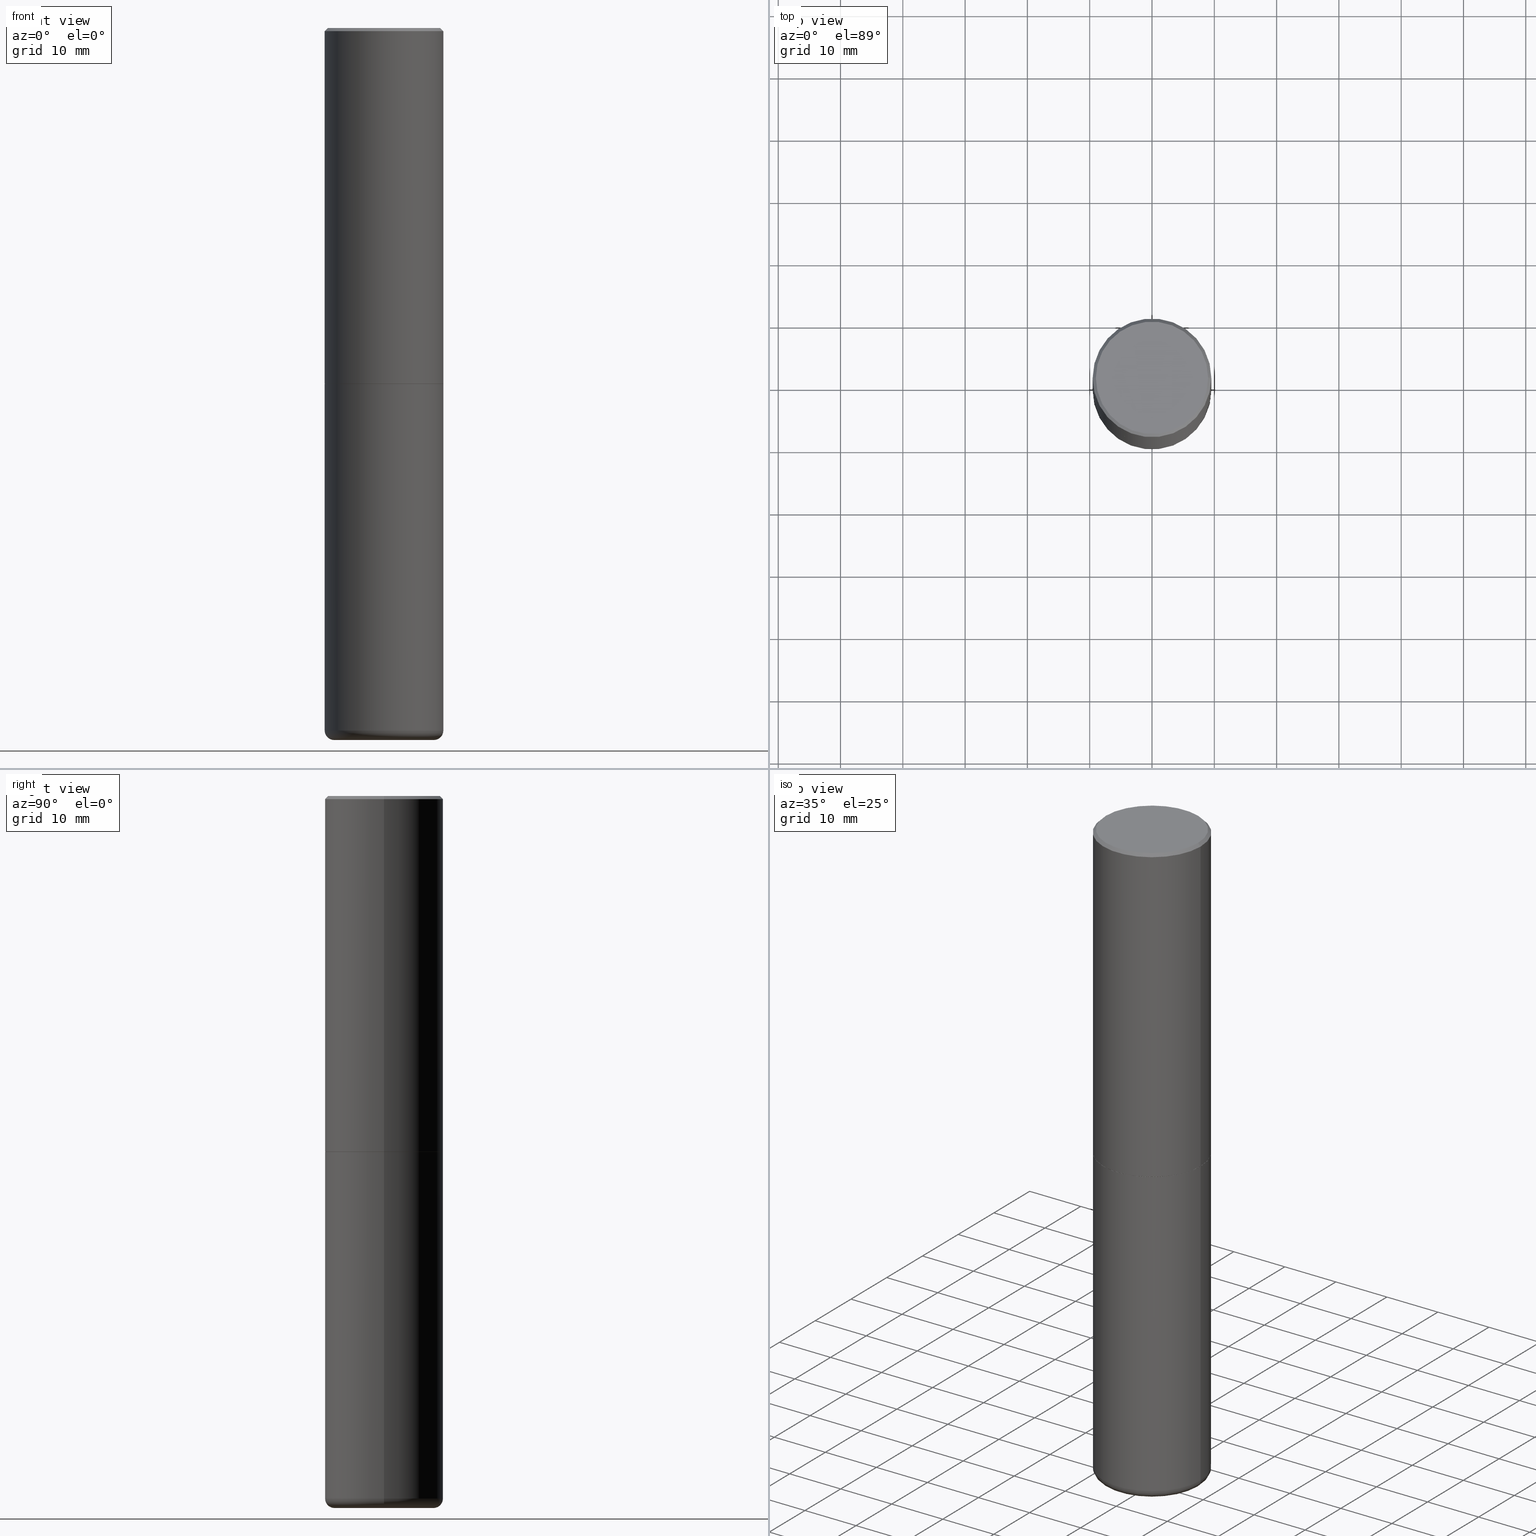
[diagram: canonical four-view strip — front | top / right | iso, engineering-drawing reading convention]
A machine part, canonical four-view strip (front | top / right | iso — engineering-drawing reading convention). The complete STEP part file that produces these views, byte-faithful:
ISO-10303-21;
HEADER;
FILE_DESCRIPTION (( 'STEP AP203' ),
    '1' );
FILE_NAME ('77270.STEP',
    '2024-03-06T16:45:54',
    ( '' ),
    ( '' ),
    'SwSTEP 2.0',
    'SolidWorks 2023',
    '' );
FILE_SCHEMA (( 'CONFIG_CONTROL_DESIGN' ));
ENDSEC;

DATA;
#1 = CARTESIAN_POINT ( 'NONE',  ( 5.502304813916558464E-29, -7.855833012397078448E-15, -2.250000000000000444 ) ) ;
#2 = VERTEX_POINT ( 'NONE', #268 ) ;
#3 = CC_DESIGN_APPROVAL ( #54, ( #314 ) ) ;
#4 = CARTESIAN_POINT ( 'NONE',  ( 4.890937612370294178E-31, -6.982962677686321191E-17, -0.02000000000000008715 ) ) ;
#5 = EDGE_CURVE ( 'NONE', #2, #329, #295, .T. ) ;
#6 = DIRECTION ( 'NONE',  ( 1.000000000000000000, -6.982962677686266711E-15, 0.000000000000000000 ) ) ;
#7 = PERSON_AND_ORGANIZATION ( #379, #67 ) ;
#8 = LINE ( 'NONE', #102, #70 ) ;
#9 = ORIENTED_EDGE ( 'NONE', *, *, #169, .F. ) ;
#10 = DIRECTION ( 'NONE',  ( 1.000000000000000000, -6.982962677686265133E-15, 0.000000000000000000 ) ) ;
#11 = LINE ( 'NONE', #83, #346 ) ;
#12 = PRODUCT_RELATED_PRODUCT_CATEGORY ( 'detail', '', ( #72 ) ) ;
#13 = ORIENTED_EDGE ( 'NONE', *, *, #355, .F. ) ;
#14 = ORIENTED_EDGE ( 'NONE', *, *, #187, .T. ) ;
#15 = CC_DESIGN_PERSON_AND_ORGANIZATION_ASSIGNMENT ( #7, #134, ( #366 ) ) ;
#16 = ORIENTED_EDGE ( 'NONE', *, *, #388, .F. ) ;
#17 = EDGE_CURVE ( 'NONE', #168, #211, #396, .T. ) ;
#18 = CARTESIAN_POINT ( 'NONE',  ( 1.085788149946200541E-28, -1.550217714446356700E-14, -4.440000000000000391 ) ) ;
#19 = CARTESIAN_POINT ( 'NONE',  ( 1.100460962783311244E-28, -1.571166602479415374E-14, -4.499999999999999112 ) ) ;
#20 = AXIS2_PLACEMENT_3D ( 'NONE', #406, #99, #400 ) ;
#21 = FACE_OUTER_BOUND ( 'NONE', #144, .T. ) ;
#22 = APPROVAL_PERSON_ORGANIZATION ( #71, #54, #349 ) ;
#23 = CC_DESIGN_PERSON_AND_ORGANIZATION_ASSIGNMENT ( #88, #148, ( #72 ) ) ;
#24 = CLOSED_SHELL ( 'NONE', ( #335, #128, #281, #377, #416, #56, #410, #198 ) ) ;
#25 = EDGE_CURVE ( 'NONE', #222, #342, #45, .T. ) ;
#26 = PERSON_AND_ORGANIZATION ( #379, #67 ) ;
#27 = LOCAL_TIME ( 11, 45, 54.00000000000000000, #415 ) ;
#28 = ADVANCED_FACE ( 'NONE', ( #146 ), #110, .T. ) ;
#29 = EDGE_CURVE ( 'NONE', #211, #168, #291, .T. ) ;
#30 = COORDINATED_UNIVERSAL_TIME_OFFSET ( 5, 0, .BEHIND. ) ;
#31 = AXIS2_PLACEMENT_3D ( 'NONE', #1, #368, #10 ) ;
#32 = EDGE_LOOP ( 'NONE', ( #354, #135, #14, #231 ) ) ;
#33 = APPLICATION_CONTEXT ( 'configuration controlled 3d designs of mechanical parts and assemblies' ) ;
#34 = CC_DESIGN_SECURITY_CLASSIFICATION ( #314, ( #97 ) ) ;
#35 = AXIS2_PLACEMENT_3D ( 'NONE', #330, #170, #296 ) ;
#36 = LINE ( 'NONE', #228, #232 ) ;
#37 = AXIS2_PLACEMENT_3D ( 'NONE', #19, #49, #276 ) ;
#38 = CARTESIAN_POINT ( 'NONE',  ( 2.478951750578624209E-15, 0.3549999999999999822, -1.207462031613563440E-15 ) ) ;
#39 = DIRECTION ( 'NONE',  ( 2.438088387897960049E-29, -3.491481338843145188E-15, -1.000000000000000000 ) ) ;
#40 = ORIENTED_EDGE ( 'NONE', *, *, #162, .F. ) ;
#41 = DIRECTION ( 'NONE',  ( 0.7071067811865232589, -2.468850131082003836E-15, 0.7071067811865715536 ) ) ;
#42 = EDGE_LOOP ( 'NONE', ( #105, #262, #267, #293 ) ) ;
#43 = CARTESIAN_POINT ( 'NONE',  ( 0.000000000000000000, 0.000000000000000000, 0.000000000000000000 ) ) ;
#44 = VERTEX_POINT ( 'NONE', #264 ) ;
#45 = CIRCLE ( 'NONE', #37, 0.3150000000000000577 ) ;
#46 = CARTESIAN_POINT ( 'NONE',  ( 0.000000000000000000, 0.000000000000000000, 0.000000000000000000 ) ) ;
#47 = DIRECTION ( 'NONE',  ( -2.445468806185136597E-29, 3.491481338843145583E-15, 1.000000000000000000 ) ) ;
#48 = AXIS2_PLACEMENT_3D ( 'NONE', #391, #86, #389 ) ;
#49 = DIRECTION ( 'NONE',  ( -2.445468806185136597E-29, 3.491481338843145583E-15, 1.000000000000000000 ) ) ;
#50 = CYLINDRICAL_SURFACE ( 'NONE', #66, 0.3750000000000002220 ) ;
#51 = AXIS2_PLACEMENT_3D ( 'NONE', #310, #171, #297 ) ;
#52 = DIRECTION ( 'NONE',  ( 0.000000000000000000, 0.000000000000000000, 1.000000000000000000 ) ) ;
#53 = LENGTH_MEASURE_WITH_UNIT ( LENGTH_MEASURE( 0.02539999999999999897 ), #381 );
#54 = APPROVAL ( #327, 'UNSPECIFIED' ) ;
#55 = PERSON_AND_ORGANIZATION ( #379, #67 ) ;
#56 = ADVANCED_FACE ( 'NONE', ( #113 ), #190, .T. ) ;
#57 = APPROVAL_ROLE ( '' ) ;
#58 = MANIFOLD_SOLID_BREP ( 'Body-Move/Copy2[2]', #24 ) ;
#59 = MANIFOLD_SOLID_BREP ( 'Body-Move/Copy2[1]', #196 ) ;
#60 = APPROVAL_PERSON_ORGANIZATION ( #197, #210, #153 ) ;
#61 = ORIENTED_EDGE ( 'NONE', *, *, #409, .F. ) ;
#62 = SHAPE_DEFINITION_REPRESENTATION ( #373, #123 ) ;
#63 = ORIENTED_EDGE ( 'NONE', *, *, #192, .T. ) ;
#64 = DATE_AND_TIME ( #383, #27 ) ;
#65 = EDGE_CURVE ( 'NONE', #154, #168, #214, .T. ) ;
#66 = AXIS2_PLACEMENT_3D ( 'NONE', #43, #303, #201 ) ;
#67 = ORGANIZATION ( 'UNSPECIFIED', 'UNSPECIFIED', '' ) ;
#68 =( GEOMETRIC_REPRESENTATION_CONTEXT ( 3 ) GLOBAL_UNCERTAINTY_ASSIGNED_CONTEXT ( ( #161 ) ) GLOBAL_UNIT_ASSIGNED_CONTEXT ( ( #285, #215, #251 ) ) REPRESENTATION_CONTEXT ( 'NONE', 'WORKASPACE' ) );
#69 = ORIENTED_EDGE ( 'NONE', *, *, #109, .F. ) ;
#70 = VECTOR ( 'NONE', #41, 39.37007874015748854 ) ;
#71 = PERSON_AND_ORGANIZATION ( #379, #67 ) ;
#72 = PRODUCT ( '77270', '77270', '', ( #246 ) ) ;
#73 = CARTESIAN_POINT ( 'NONE',  ( 0.3739999999999999991, -1.046746105385174245E-14, -2.250000000000000444 ) ) ;
#74 = CARTESIAN_POINT ( 'NONE',  ( 1.100460962783311244E-28, -1.571166602479415374E-14, -4.499999999999999112 ) ) ;
#75 = DIRECTION ( 'NONE',  ( 7.105427357601001859E-15, 1.000000000000000000, -3.491481338843145583E-15 ) ) ;
#76 = ORIENTED_EDGE ( 'NONE', *, *, #5, .F. ) ;
#77 = LOCAL_TIME ( 11, 45, 54.00000000000000000, #287 ) ;
#78 = DIRECTION ( 'NONE',  ( 1.000000000000000000, -6.982962677686265922E-15, 4.876176775795935793E-29 ) ) ;
#79 = CARTESIAN_POINT ( 'NONE',  ( 0.3750000000000000555, -2.618611004132350016E-15, 1.828566290923476203E-29 ) ) ;
#80 = VERTEX_POINT ( 'NONE', #73 ) ;
#81 = EDGE_LOOP ( 'NONE', ( #69, #347, #63, #236 ) ) ;
#82 = CARTESIAN_POINT ( 'NONE',  ( 0.000000000000000000, 0.000000000000000000, 0.000000000000000000 ) ) ;
#83 = CARTESIAN_POINT ( 'NONE',  ( -0.3750000000000001110, 2.548781377355487113E-15, -0.02000000000000008715 ) ) ;
#84 = AXIS2_PLACEMENT_3D ( 'NONE', #38, #166, #306 ) ;
#85 = ORIENTED_EDGE ( 'NONE', *, *, #169, .T. ) ;
#86 = DIRECTION ( 'NONE',  ( 2.445468806185136597E-29, -3.491481338843145583E-15, -1.000000000000000000 ) ) ;
#87 = DIRECTION ( 'NONE',  ( 1.000000000000000000, -6.982962677686265922E-15, 4.876176775795935793E-29 ) ) ;
#88 = PERSON_AND_ORGANIZATION ( #379, #67 ) ;
#89 = AXIS2_PLACEMENT_3D ( 'NONE', #179, #292, #223 ) ;
#90 = DIRECTION ( 'NONE',  ( 2.445468806185136597E-29, -3.491481338843145583E-15, -1.000000000000000000 ) ) ;
#91 = ADVANCED_FACE ( 'NONE', ( #245 ), #235, .F. ) ;
#92 = DATE_AND_TIME ( #359, #294 ) ;
#93 = AXIS2_PLACEMENT_3D ( 'NONE', #4, #204, #100 ) ;
#94 = APPROVAL_DATE_TIME ( #64, #141 ) ;
#95 = TOROIDAL_SURFACE ( 'NONE', #339, 0.3150000000000000577, 0.05999999999999966471 ) ;
#96 = ADVANCED_FACE ( 'NONE', ( #362 ), #95, .T. ) ;
#97 = PRODUCT_DEFINITION_FORMATION_WITH_SPECIFIED_SOURCE ( 'ANY', '', #72, .NOT_KNOWN. ) ;
#98 = ORIENTED_EDGE ( 'NONE', *, *, #407, .F. ) ;
#99 = DIRECTION ( 'NONE',  ( -2.445468806185136597E-29, 3.491481338843145583E-15, 1.000000000000000000 ) ) ;
#100 = DIRECTION ( 'NONE',  ( 1.000000000000000000, -6.982962677686265922E-15, 0.000000000000000000 ) ) ;
#101 = CIRCLE ( 'NONE', #243, 0.3750000000000001110 ) ;
#102 = CARTESIAN_POINT ( 'NONE',  ( 0.3739999999999999991, -1.046746105385174245E-14, -2.250000000000000444 ) ) ;
#103 = ORIENTED_EDGE ( 'NONE', *, *, #109, .T. ) ;
#104 = TOROIDAL_SURFACE ( 'NONE', #126, 0.3150000000000000577, 0.05999999999999966471 ) ;
#105 = ORIENTED_EDGE ( 'NONE', *, *, #221, .F. ) ;
#106 = CARTESIAN_POINT ( 'NONE',  ( 1.085788149946200541E-28, -1.550217714446356700E-14, -4.440000000000000391 ) ) ;
#107 = CARTESIAN_POINT ( 'NONE',  ( 1.085788149946200541E-28, -1.550217714446356700E-14, -4.440000000000000391 ) ) ;
#108 = ORIENTED_EDGE ( 'NONE', *, *, #221, .T. ) ;
#109 = EDGE_CURVE ( 'NONE', #222, #154, #418, .T. ) ;
#110 = CYLINDRICAL_SURFACE ( 'NONE', #350, 0.3750000000000000555 ) ;
#111 = FACE_OUTER_BOUND ( 'NONE', #273, .T. ) ;
#112 = FACE_OUTER_BOUND ( 'NONE', #81, .T. ) ;
#113 = FACE_OUTER_BOUND ( 'NONE', #384, .T. ) ;
#114 = CARTESIAN_POINT ( 'NONE',  ( 5.499859345110371740E-29, -7.852341531058233864E-15, -2.249000000000000110 ) ) ;
#115 = DIRECTION ( 'NONE',  ( -2.445468806185136597E-29, 3.491481338843145583E-15, 1.000000000000000000 ) ) ;
#116 = VECTOR ( 'NONE', #117, 39.37007874015748143 ) ;
#117 = DIRECTION ( 'NONE',  ( 0.7071067811865471286, -7.319954787623254468E-15, -0.7071067811865479058 ) ) ;
#118 = DIRECTION ( 'NONE',  ( -2.445468806185136597E-29, 3.491481338843145583E-15, 1.000000000000000000 ) ) ;
#119 = AXIS2_PLACEMENT_3D ( 'NONE', #139, #360, #127 ) ;
#120 = CARTESIAN_POINT ( 'NONE',  ( 4.890937612370294178E-31, -6.982962677686321191E-17, -0.02000000000000008715 ) ) ;
#121 = APPROVAL_DATE_TIME ( #155, #54 ) ;
#122 = VECTOR ( 'NONE', #234, 39.37007874015748143 ) ;
#123 = ADVANCED_BREP_SHAPE_REPRESENTATION ( '77270', ( #59, #58, #149 ), #68 ) ;
#124 = CALENDAR_DATE ( 2024, 6, 3 ) ;
#125 = CC_DESIGN_PERSON_AND_ORGANIZATION_ASSIGNMENT ( #55, #255, ( #97 ) ) ;
#126 = AXIS2_PLACEMENT_3D ( 'NONE', #107, #238, #319 ) ;
#127 = DIRECTION ( 'NONE',  ( 1.000000000000000000, -6.982962677686265922E-15, 4.876231632511988183E-29 ) ) ;
#128 = ADVANCED_FACE ( 'NONE', ( #145 ), #50, .T. ) ;
#129 = ORIENTED_EDGE ( 'NONE', *, *, #65, .F. ) ;
#130 = AXIS2_PLACEMENT_3D ( 'NONE', #74, #269, #199 ) ;
#131 = FACE_OUTER_BOUND ( 'NONE', #32, .T. ) ;
#132 = CARTESIAN_POINT ( 'NONE',  ( -0.3749999999999998335, -1.283764188536319288E-14, -4.440000000000000391 ) ) ;
#133 = ORIENTED_EDGE ( 'NONE', *, *, #355, .T. ) ;
#134 = PERSON_AND_ORGANIZATION_ROLE ( 'creator' ) ;
#135 = ORIENTED_EDGE ( 'NONE', *, *, #248, .F. ) ;
#136 = FACE_OUTER_BOUND ( 'NONE', #341, .T. ) ;
#137 = CARTESIAN_POINT ( 'NONE',  ( 0.3749999999999998335, -1.812078814859591702E-14, -4.440000000000000391 ) ) ;
#138 = CARTESIAN_POINT ( 'NONE',  ( 0.3750000000000002220, -2.618611004132351594E-15, 1.828566290923477043E-29 ) ) ;
#139 = CARTESIAN_POINT ( 'NONE',  ( -1.565777121502829671E-45, 2.235514755570671047E-31, 6.402768735150616610E-17 ) ) ;
#140 = PLANE ( 'NONE',  #84 ) ;
#141 = APPROVAL ( #159, 'UNSPECIFIED' ) ;
#142 = DIRECTION ( 'NONE',  ( -2.445468806185136597E-29, 3.491481338843145583E-15, 1.000000000000000000 ) ) ;
#143 = DIRECTION ( 'NONE',  ( -2.445468806185136597E-29, 3.491481338843145583E-15, 1.000000000000000000 ) ) ;
#144 = EDGE_LOOP ( 'NONE', ( #98, #312, #133, #298 ) ) ;
#145 = FACE_OUTER_BOUND ( 'NONE', #177, .T. ) ;
#146 = FACE_OUTER_BOUND ( 'NONE', #369, .T. ) ;
#147 = DIRECTION ( 'NONE',  ( -2.445468806185136597E-29, 3.491481338843145583E-15, 1.000000000000000000 ) ) ;
#148 = PERSON_AND_ORGANIZATION_ROLE ( 'design_owner' ) ;
#149 = AXIS2_PLACEMENT_3D ( 'NONE', #280, #52, #380 ) ;
#150 = EDGE_CURVE ( 'NONE', #258, #154, #253, .T. ) ;
#151 = AXIS2_PLACEMENT_3D ( 'NONE', #18, #118, #6 ) ;
#152 = CIRCLE ( 'NONE', #328, 0.3750000000000000555 ) ;
#153 = APPROVAL_ROLE ( '' ) ;
#154 = VERTEX_POINT ( 'NONE', #132 ) ;
#155 = DATE_AND_TIME ( #411, #351 ) ;
#156 = AXIS2_PLACEMENT_3D ( 'NONE', #401, #147, #283 ) ;
#157 = CIRCLE ( 'NONE', #93, 0.3750000000000001110 ) ;
#158 = EDGE_LOOP ( 'NONE', ( #374, #337 ) ) ;
#159 = APPROVAL_STATUS ( 'not_yet_approved' ) ;
#160 = CC_DESIGN_PERSON_AND_ORGANIZATION_ASSIGNMENT ( #26, #188, ( #314 ) ) ;
#161 = UNCERTAINTY_MEASURE_WITH_UNIT (LENGTH_MEASURE( 1.000000000000000082E-05 ), #285, 'distance_accuracy_value', 'NONE');
#162 = EDGE_CURVE ( 'NONE', #390, #2, #387, .T. ) ;
#163 = DIRECTION ( 'NONE',  ( -0.7071067811865232589, 7.493145998870265808E-15, 0.7071067811865715536 ) ) ;
#164 = AXIS2_PLACEMENT_3D ( 'NONE', #114, #143, #322 ) ;
#165 = CARTESIAN_POINT ( 'NONE',  ( 0.3750000000000001110, -2.642516375941188423E-15, -0.02000000000000008715 ) ) ;
#166 = DIRECTION ( 'NONE',  ( 2.438088387897960049E-29, -3.491481338843145188E-15, -1.000000000000000000 ) ) ;
#167 = LOCAL_TIME ( 11, 45, 54.00000000000000000, #286 ) ;
#168 = VERTEX_POINT ( 'NONE', #172 ) ;
#169 = EDGE_CURVE ( 'NONE', #80, #2, #8, .T. ) ;
#170 = DIRECTION ( 'NONE',  ( -2.438088387897960049E-29, 3.491481338843145188E-15, 1.000000000000000000 ) ) ;
#171 = DIRECTION ( 'NONE',  ( -2.445468806185136597E-29, 3.491481338843145583E-15, 1.000000000000000000 ) ) ;
#172 = CARTESIAN_POINT ( 'NONE',  ( -0.3750000000000000555, -9.014469819329945451E-15, -2.250000000000000000 ) ) ;
#173 = VERTEX_POINT ( 'NONE', #290 ) ;
#174 = VERTEX_POINT ( 'NONE', #357 ) ;
#175 = CYLINDRICAL_SURFACE ( 'NONE', #156, 0.3750000000000002220 ) ;
#176 = AXIS2_PLACEMENT_3D ( 'NONE', #240, #370, #309 ) ;
#177 = EDGE_LOOP ( 'NONE', ( #219, #108, #13, #76 ) ) ;
#178 = DIRECTION ( 'NONE',  ( -2.445468806185136597E-29, 3.491481338843145583E-15, 1.000000000000000000 ) ) ;
#179 = CARTESIAN_POINT ( 'NONE',  ( 1.645500750808158901E-28, -7.906386042896257254E-15, -4.499999999999999112 ) ) ;
#180 = DIRECTION ( 'NONE',  ( 1.000000000000000000, -6.982962677686246200E-15, 0.000000000000000000 ) ) ;
#181 = DIRECTION ( 'NONE',  ( 1.000000000000000000, -6.982962677686264344E-15, 0.000000000000000000 ) ) ;
#182 = EDGE_CURVE ( 'NONE', #258, #211, #224, .T. ) ;
#183 = DIRECTION ( 'NONE',  ( -1.000000000000000000, 6.982962677686265922E-15, 0.000000000000000000 ) ) ;
#184 = VECTOR ( 'NONE', #230, 39.37007874015748143 ) ;
#185 = LINE ( 'NONE', #315, #116 ) ;
#186 = CONICAL_SURFACE ( 'NONE', #408, 0.3750000000000001110, 0.7853981633974477239 ) ;
#187 = EDGE_CURVE ( 'NONE', #173, #44, #11, .T. ) ;
#188 = PERSON_AND_ORGANIZATION_ROLE ( 'classification_officer' ) ;
#189 = APPROVAL_STATUS ( 'not_yet_approved' ) ;
#190 = CONICAL_SURFACE ( 'NONE', #176, 0.3739999999999999991, 0.7853981633974141952 ) ;
#191 = PERSON_AND_ORGANIZATION_ROLE ( 'design_supplier' ) ;
#192 = EDGE_CURVE ( 'NONE', #342, #258, #249, .T. ) ;
#193 = EDGE_CURVE ( 'NONE', #80, #174, #208, .T. ) ;
#194 = ORIENTED_EDGE ( 'NONE', *, *, #409, .T. ) ;
#195 = CARTESIAN_POINT ( 'NONE',  ( 0.3150000000000000577, -1.791129926826532712E-14, -4.499999999999999112 ) ) ;
#196 = CLOSED_SHELL ( 'NONE', ( #28, #96, #91, #371, #252, #324 ) ) ;
#197 = PERSON_AND_ORGANIZATION ( #379, #67 ) ;
#198 = ADVANCED_FACE ( 'NONE', ( #302 ), #140, .F. ) ;
#199 = DIRECTION ( 'NONE',  ( 1.000000000000000000, -6.982962677686261189E-15, 0.000000000000000000 ) ) ;
#200 = CIRCLE ( 'NONE', #119, 0.3549999999999999822 ) ;
#201 = DIRECTION ( 'NONE',  ( 1.000000000000000000, -6.982962677686266711E-15, 4.876176775795935793E-29 ) ) ;
#202 = ORIENTED_EDGE ( 'NONE', *, *, #192, .F. ) ;
#203 = CC_DESIGN_APPROVAL ( #210, ( #97 ) ) ;
#204 = DIRECTION ( 'NONE',  ( -2.445468806185136597E-29, 3.491481338843145583E-15, 1.000000000000000000 ) ) ;
#205 = ORIENTED_EDGE ( 'NONE', *, *, #395, .T. ) ;
#206 = ORIENTED_EDGE ( 'NONE', *, *, #193, .T. ) ;
#207 = DIRECTION ( 'NONE',  ( -6.982962677686266711E-15, -1.000000000000000000, 3.491481338843145583E-15 ) ) ;
#208 = CIRCLE ( 'NONE', #288, 0.3739999999999999991 ) ;
#209 = EDGE_LOOP ( 'NONE', ( #206, #399, #348, #9 ) ) ;
#210 = APPROVAL ( #189, 'UNSPECIFIED' ) ;
#211 = VERTEX_POINT ( 'NONE', #340 ) ;
#212 = EDGE_CURVE ( 'NONE', #174, #80, #300, .T. ) ;
#213 = DIMENSIONAL_EXPONENTS ( 1.000000000000000000, 0.000000000000000000, 0.000000000000000000, 0.000000000000000000, 0.000000000000000000, 0.000000000000000000, 0.000000000000000000 ) ;
#214 = LINE ( 'NONE', #279, #284 ) ;
#215 =( NAMED_UNIT ( * ) PLANE_ANGLE_UNIT ( ) SI_UNIT ( $, .RADIAN. ) );
#216 = AXIS2_PLACEMENT_3D ( 'NONE', #372, #39, #343 ) ;
#217 = CC_DESIGN_DATE_AND_TIME_ASSIGNMENT ( #92, #320, ( #314 ) ) ;
#218 = AXIS2_PLACEMENT_3D ( 'NONE', #271, #115, #392 ) ;
#219 = ORIENTED_EDGE ( 'NONE', *, *, #317, .T. ) ;
#220 = APPROVAL_DATE_TIME ( #318, #210 ) ;
#221 = EDGE_CURVE ( 'NONE', #390, #44, #402, .T. ) ;
#222 = VERTEX_POINT ( 'NONE', #242 ) ;
#223 = DIRECTION ( 'NONE',  ( -1.000000000000000000, 6.982962677686265922E-15, -4.876176775795935793E-29 ) ) ;
#224 = LINE ( 'NONE', #79, #184 ) ;
#225 = VERTEX_POINT ( 'NONE', #331 ) ;
#226 = COORDINATED_UNIVERSAL_TIME_OFFSET ( 5, 0, .BEHIND. ) ;
#227 = DIRECTION ( 'NONE',  ( -2.445468806185136877E-29, 3.491481338843145188E-15, 1.000000000000000000 ) ) ;
#228 = CARTESIAN_POINT ( 'NONE',  ( -0.3739999999999999991, -5.198403180654303760E-15, -2.250000000000000444 ) ) ;
#229 = AXIS2_PLACEMENT_3D ( 'NONE', #397, #142, #181 ) ;
#230 = DIRECTION ( 'NONE',  ( -2.445468806185136877E-29, 3.491481338843145188E-15, 1.000000000000000000 ) ) ;
#231 = ORIENTED_EDGE ( 'NONE', *, *, #304, .T. ) ;
#232 = VECTOR ( 'NONE', #163, 39.37007874015748854 ) ;
#233 = EDGE_LOOP ( 'NONE', ( #194, #103, #358, #202 ) ) ;
#234 = DIRECTION ( 'NONE',  ( -2.445468806185136877E-29, 3.491481338843145188E-15, 1.000000000000000000 ) ) ;
#235 = PLANE ( 'NONE',  #216 ) ;
#236 = ORIENTED_EDGE ( 'NONE', *, *, #395, .F. ) ;
#237 = CC_DESIGN_PERSON_AND_ORGANIZATION_ASSIGNMENT ( #386, #191, ( #97 ) ) ;
#238 = DIRECTION ( 'NONE',  ( -2.445468806185136597E-29, 3.491481338843145583E-15, 1.000000000000000000 ) ) ;
#239 = ORIENTED_EDGE ( 'NONE', *, *, #25, .F. ) ;
#240 = CARTESIAN_POINT ( 'NONE',  ( 5.502304813916558464E-29, -7.855833012397078448E-15, -2.250000000000000444 ) ) ;
#241 = DIRECTION ( 'NONE',  ( -2.445468806185136597E-29, 3.491481338843145583E-15, 1.000000000000000000 ) ) ;
#242 = CARTESIAN_POINT ( 'NONE',  ( -0.3150000000000000577, -1.315554914625651808E-14, -4.499999999999999112 ) ) ;
#243 = AXIS2_PLACEMENT_3D ( 'NONE', #247, #378, #352 ) ;
#244 = ORIENTED_EDGE ( 'NONE', *, *, #29, .F. ) ;
#245 = FACE_OUTER_BOUND ( 'NONE', #158, .T. ) ;
#246 = MECHANICAL_CONTEXT ( 'NONE', #270, 'mechanical' ) ;
#247 = CARTESIAN_POINT ( 'NONE',  ( 4.890937612370294178E-31, -6.982962677686321191E-17, -0.02000000000000008715 ) ) ;
#248 = EDGE_CURVE ( 'NONE', #173, #225, #316, .T. ) ;
#249 = CIRCLE ( 'NONE', #313, 0.05999999999999963002 ) ;
#250 = APPLICATION_PROTOCOL_DEFINITION ( 'international standard', 'config_control_design', 1994, #33 ) ;
#251 =( NAMED_UNIT ( * ) SI_UNIT ( $, .STERADIAN. ) SOLID_ANGLE_UNIT ( ) );
#252 = ADVANCED_FACE ( 'NONE', ( #112 ), #104, .T. ) ;
#253 = CIRCLE ( 'NONE', #151, 0.3750000000000000555 ) ;
#254 = DATE_TIME_ROLE ( 'creation_date' ) ;
#255 = PERSON_AND_ORGANIZATION_ROLE ( 'creator' ) ;
#256 = AXIS2_PLACEMENT_3D ( 'NONE', #375, #75, #336 ) ;
#257 = CYLINDRICAL_SURFACE ( 'NONE', #289, 0.3750000000000000555 ) ;
#258 = VERTEX_POINT ( 'NONE', #137 ) ;
#259 = EDGE_CURVE ( 'NONE', #225, #329, #185, .T. ) ;
#260 = DIRECTION ( 'NONE',  ( 1.000000000000000000, -6.982962677686265133E-15, 0.000000000000000000 ) ) ;
#261 = CARTESIAN_POINT ( 'NONE',  ( 5.499859345110371740E-29, -7.852341531058233864E-15, -2.249000000000000110 ) ) ;
#262 = ORIENTED_EDGE ( 'NONE', *, *, #162, .T. ) ;
#263 = CALENDAR_DATE ( 2024, 6, 3 ) ;
#264 = CARTESIAN_POINT ( 'NONE',  ( -0.3750000000000001110, 2.548781377355487113E-15, -0.02000000000000008715 ) ) ;
#265 = CARTESIAN_POINT ( 'NONE',  ( -0.3750000000000002776, -1.296550319817170517E-15, -2.249000000000000110 ) ) ;
#266 = CARTESIAN_POINT ( 'NONE',  ( -0.3750000000000002220, 2.664535259100377275E-15, -1.844600658845590719E-29 ) ) ;
#267 = ORIENTED_EDGE ( 'NONE', *, *, #5, .T. ) ;
#268 = CARTESIAN_POINT ( 'NONE',  ( 0.3750000000000002776, -1.047095253519058704E-14, -2.249000000000000110 ) ) ;
#269 = DIRECTION ( 'NONE',  ( -2.445468806185136597E-29, 3.491481338843145583E-15, 1.000000000000000000 ) ) ;
#270 = APPLICATION_CONTEXT ( 'configuration controlled 3d designs of mechanical parts and assemblies' ) ;
#271 = CARTESIAN_POINT ( 'NONE',  ( 5.502304813916558464E-29, -7.855833012397078448E-15, -2.250000000000000444 ) ) ;
#272 = EDGE_LOOP ( 'NONE', ( #321, #364 ) ) ;
#273 = EDGE_LOOP ( 'NONE', ( #61, #239 ) ) ;
#274 = PLANE ( 'NONE',  #89 ) ;
#275 = DIRECTION ( 'NONE',  ( -0.7071067811865471286, 2.468850131082252722E-15, -0.7071067811865479058 ) ) ;
#276 = DIRECTION ( 'NONE',  ( 1.000000000000000000, -6.982962677686261189E-15, 0.000000000000000000 ) ) ;
#277 = APPLICATION_PROTOCOL_DEFINITION ( 'international standard', 'config_control_design', 1994, #270 ) ;
#278 = CONICAL_SURFACE ( 'NONE', #31, 0.3739999999999999991, 0.7853981633974141952 ) ;
#279 = CARTESIAN_POINT ( 'NONE',  ( -0.3750000000000000555, 2.664535259100376091E-15, -1.844600658845589598E-29 ) ) ;
#280 = CARTESIAN_POINT ( 'NONE',  ( 0.000000000000000000, 0.000000000000000000, 0.000000000000000000 ) ) ;
#281 = ADVANCED_FACE ( 'NONE', ( #21 ), #186, .T. ) ;
#282 = PERSON_AND_ORGANIZATION ( #379, #67 ) ;
#283 = DIRECTION ( 'NONE',  ( 1.000000000000000000, -6.982962677686266711E-15, 4.876176775795935793E-29 ) ) ;
#284 = VECTOR ( 'NONE', #227, 39.37007874015748143 ) ;
#285 =( CONVERSION_BASED_UNIT ( 'INCH', #53 ) LENGTH_UNIT ( ) NAMED_UNIT ( #213 ) );
#286 = COORDINATED_UNIVERSAL_TIME_OFFSET ( 5, 0, .BEHIND. ) ;
#287 = COORDINATED_UNIVERSAL_TIME_OFFSET ( 5, 0, .BEHIND. ) ;
#288 = AXIS2_PLACEMENT_3D ( 'NONE', #325, #404, #260 ) ;
#289 = AXIS2_PLACEMENT_3D ( 'NONE', #82, #241, #78 ) ;
#290 = CARTESIAN_POINT ( 'NONE',  ( -0.3549999999999999822, 2.513866563967055464E-15, 6.402768735148871255E-17 ) ) ;
#291 = CIRCLE ( 'NONE', #229, 0.3750000000000000555 ) ;
#292 = DIRECTION ( 'NONE',  ( 2.438088387897960049E-29, -3.491481338843145188E-15, -1.000000000000000000 ) ) ;
#293 = ORIENTED_EDGE ( 'NONE', *, *, #304, .F. ) ;
#294 = LOCAL_TIME ( 11, 45, 54.00000000000000000, #226 ) ;
#295 = LINE ( 'NONE', #138, #413 ) ;
#296 = DIRECTION ( 'NONE',  ( 1.000000000000000000, -6.982962677686265922E-15, 4.876176775795935793E-29 ) ) ;
#297 = DIRECTION ( 'NONE',  ( 1.000000000000000000, -6.982962677686265922E-15, 4.876231632511988183E-29 ) ) ;
#298 = ORIENTED_EDGE ( 'NONE', *, *, #187, .F. ) ;
#299 = ORIENTED_EDGE ( 'NONE', *, *, #193, .F. ) ;
#300 = CIRCLE ( 'NONE', #218, 0.3739999999999999991 ) ;
#301 = DIRECTION ( 'NONE',  ( 1.000000000000000000, -6.982962677686266711E-15, 0.000000000000000000 ) ) ;
#302 = FACE_OUTER_BOUND ( 'NONE', #272, .T. ) ;
#303 = DIRECTION ( 'NONE',  ( -2.445468806185136597E-29, 3.491481338843145583E-15, 1.000000000000000000 ) ) ;
#304 = EDGE_CURVE ( 'NONE', #44, #329, #101, .T. ) ;
#305 = FACE_OUTER_BOUND ( 'NONE', #209, .T. ) ;
#306 = DIRECTION ( 'NONE',  ( -1.000000000000000000, 6.982962677686265922E-15, -4.876176775795935793E-29 ) ) ;
#307 = DIRECTION ( 'NONE',  ( 1.000000000000000000, -6.982962677686263555E-15, 4.883557194083111219E-29 ) ) ;
#308 = CC_DESIGN_APPROVAL ( #141, ( #366 ) ) ;
#309 = DIRECTION ( 'NONE',  ( 1.000000000000000000, -6.982962677686265133E-15, 0.000000000000000000 ) ) ;
#310 = CARTESIAN_POINT ( 'NONE',  ( -1.565777121502829671E-45, 2.235514755570671047E-31, 6.402768735150616610E-17 ) ) ;
#311 = CARTESIAN_POINT ( 'NONE',  ( 1.085788149946200541E-28, -1.550217714446356700E-14, -4.440000000000000391 ) ) ;
#312 = ORIENTED_EDGE ( 'NONE', *, *, #259, .T. ) ;
#313 = AXIS2_PLACEMENT_3D ( 'NONE', #361, #207, #180 ) ;
#314 = SECURITY_CLASSIFICATION ( '', '', #382 ) ;
#315 = CARTESIAN_POINT ( 'NONE',  ( 0.3750000000000001110, -2.642516375941188423E-15, -0.02000000000000008715 ) ) ;
#316 = CIRCLE ( 'NONE', #51, 0.3549999999999999822 ) ;
#317 = EDGE_CURVE ( 'NONE', #2, #390, #344, .T. ) ;
#318 = DATE_AND_TIME ( #124, #167 ) ;
#319 = DIRECTION ( 'NONE',  ( 1.000000000000000000, -6.982962677686263555E-15, 4.883557194083111219E-29 ) ) ;
#320 = DATE_TIME_ROLE ( 'classification_date' ) ;
#321 = ORIENTED_EDGE ( 'NONE', *, *, #248, .T. ) ;
#322 = DIRECTION ( 'NONE',  ( 1.000000000000000000, -6.982962677686267499E-15, 0.000000000000000000 ) ) ;
#323 = EDGE_LOOP ( 'NONE', ( #129, #205, #326, #405 ) ) ;
#324 = ADVANCED_FACE ( 'NONE', ( #111 ), #274, .T. ) ;
#325 = CARTESIAN_POINT ( 'NONE',  ( 5.502304813916558464E-29, -7.855833012397078448E-15, -2.250000000000000444 ) ) ;
#326 = ORIENTED_EDGE ( 'NONE', *, *, #182, .T. ) ;
#327 = APPROVAL_STATUS ( 'not_yet_approved' ) ;
#328 = AXIS2_PLACEMENT_3D ( 'NONE', #106, #365, #301 ) ;
#329 = VERTEX_POINT ( 'NONE', #165 ) ;
#330 = CARTESIAN_POINT ( 'NONE',  ( 5.502304813916558464E-29, -7.855833012397078448E-15, -2.250000000000000444 ) ) ;
#331 = CARTESIAN_POINT ( 'NONE',  ( 0.3549999999999999822, -2.538996582575041048E-15, 6.402768735152371826E-17 ) ) ;
#332 = DIRECTION ( 'NONE',  ( 1.000000000000000000, -6.982962677686267499E-15, 0.000000000000000000 ) ) ;
#333 = ORIENTED_EDGE ( 'NONE', *, *, #212, .T. ) ;
#334 = FACE_OUTER_BOUND ( 'NONE', #42, .T. ) ;
#335 = ADVANCED_FACE ( 'NONE', ( #305 ), #278, .T. ) ;
#336 = DIRECTION ( 'NONE',  ( -1.000000000000000000, 7.105427357601001859E-15, 0.000000000000000000 ) ) ;
#337 = ORIENTED_EDGE ( 'NONE', *, *, #17, .T. ) ;
#338 = ORIENTED_EDGE ( 'NONE', *, *, #182, .F. ) ;
#339 = AXIS2_PLACEMENT_3D ( 'NONE', #311, #47, #307 ) ;
#340 = CARTESIAN_POINT ( 'NONE',  ( 0.3750000000000000555, -1.047444401652942689E-14, -2.250000000000000000 ) ) ;
#341 = EDGE_LOOP ( 'NONE', ( #299, #394 ) ) ;
#342 = VERTEX_POINT ( 'NONE', #195 ) ;
#343 = DIRECTION ( 'NONE',  ( -1.000000000000000000, 6.982962677686265922E-15, -4.876176775795935793E-29 ) ) ;
#344 = CIRCLE ( 'NONE', #164, 0.3750000000000002776 ) ;
#345 = AXIS2_PLACEMENT_3D ( 'NONE', #261, #393, #332 ) ;
#346 = VECTOR ( 'NONE', #275, 39.37007874015748143 ) ;
#347 = ORIENTED_EDGE ( 'NONE', *, *, #25, .T. ) ;
#348 = ORIENTED_EDGE ( 'NONE', *, *, #317, .F. ) ;
#349 = APPROVAL_ROLE ( '' ) ;
#350 = AXIS2_PLACEMENT_3D ( 'NONE', #46, #178, #87 ) ;
#351 = LOCAL_TIME ( 11, 45, 54.00000000000000000, #30 ) ;
#352 = DIRECTION ( 'NONE',  ( 1.000000000000000000, -6.982962677686265922E-15, 0.000000000000000000 ) ) ;
#353 = CC_DESIGN_DATE_AND_TIME_ASSIGNMENT ( #412, #254, ( #366 ) ) ;
#354 = ORIENTED_EDGE ( 'NONE', *, *, #259, .F. ) ;
#355 = EDGE_CURVE ( 'NONE', #329, #44, #157, .T. ) ;
#356 = FACE_OUTER_BOUND ( 'NONE', #323, .T. ) ;
#357 = CARTESIAN_POINT ( 'NONE',  ( -0.3739999999999999991, -5.193104726306080569E-15, -2.250000000000000444 ) ) ;
#358 = ORIENTED_EDGE ( 'NONE', *, *, #150, .F. ) ;
#359 = CALENDAR_DATE ( 2024, 6, 3 ) ;
#360 = DIRECTION ( 'NONE',  ( -2.445468806185136597E-29, 3.491481338843145583E-15, 1.000000000000000000 ) ) ;
#361 = CARTESIAN_POINT ( 'NONE',  ( 0.3150000000000000577, -1.770181038793474354E-14, -4.440000000000000391 ) ) ;
#362 = FACE_OUTER_BOUND ( 'NONE', #233, .T. ) ;
#363 = ORIENTED_EDGE ( 'NONE', *, *, #150, .T. ) ;
#364 = ORIENTED_EDGE ( 'NONE', *, *, #407, .T. ) ;
#365 = DIRECTION ( 'NONE',  ( -2.445468806185136597E-29, 3.491481338843145583E-15, 1.000000000000000000 ) ) ;
#366 = PRODUCT_DEFINITION ( 'UNKNOWN', '', #97, #417 ) ;
#367 = ORIENTED_EDGE ( 'NONE', *, *, #65, .T. ) ;
#368 = DIRECTION ( 'NONE',  ( -2.445468806185136597E-29, 3.491481338843145583E-15, 1.000000000000000000 ) ) ;
#369 = EDGE_LOOP ( 'NONE', ( #363, #367, #244, #338 ) ) ;
#370 = DIRECTION ( 'NONE',  ( -2.445468806185136597E-29, 3.491481338843145583E-15, 1.000000000000000000 ) ) ;
#371 = ADVANCED_FACE ( 'NONE', ( #356 ), #257, .T. ) ;
#372 = CARTESIAN_POINT ( 'NONE',  ( 5.502304813916557343E-29, -7.855833012397078448E-15, -2.250000000000000000 ) ) ;
#373 = PRODUCT_DEFINITION_SHAPE ( 'NONE', 'NONE',  #366 ) ;
#374 = ORIENTED_EDGE ( 'NONE', *, *, #29, .T. ) ;
#375 = CARTESIAN_POINT ( 'NONE',  ( -0.3150000000000000577, -1.326396752681925180E-14, -4.440000000000000391 ) ) ;
#376 = CIRCLE ( 'NONE', #130, 0.3150000000000000577 ) ;
#377 = ADVANCED_FACE ( 'NONE', ( #131 ), #414, .T. ) ;
#378 = DIRECTION ( 'NONE',  ( -2.445468806185136597E-29, 3.491481338843145583E-15, 1.000000000000000000 ) ) ;
#379 = PERSON ( 'UNSPECIFIED', 'UNSPECIFIED', 'UNSPECIFIED', ('UNSPECIFIED'), ('UNSPECIFIED'), ('UNSPECIFIED') ) ;
#380 = DIRECTION ( 'NONE',  ( 1.000000000000000000, 0.000000000000000000, 0.000000000000000000 ) ) ;
#381 =( LENGTH_UNIT ( ) NAMED_UNIT ( * ) SI_UNIT ( $, .METRE. ) );
#382 = SECURITY_CLASSIFICATION_LEVEL ( 'unclassified' ) ;
#383 = CALENDAR_DATE ( 2024, 6, 3 ) ;
#384 = EDGE_LOOP ( 'NONE', ( #16, #333, #85, #40 ) ) ;
#385 = APPROVAL_PERSON_ORGANIZATION ( #282, #141, #57 ) ;
#386 = PERSON_AND_ORGANIZATION ( #379, #67 ) ;
#387 = CIRCLE ( 'NONE', #345, 0.3750000000000002776 ) ;
#388 = EDGE_CURVE ( 'NONE', #174, #390, #36, .T. ) ;
#389 = DIRECTION ( 'NONE',  ( -1.000000000000000000, 6.982962677686265922E-15, 0.000000000000000000 ) ) ;
#390 = VERTEX_POINT ( 'NONE', #265 ) ;
#391 = CARTESIAN_POINT ( 'NONE',  ( 4.890937612370294178E-31, -6.982962677686321191E-17, -0.02000000000000008715 ) ) ;
#392 = DIRECTION ( 'NONE',  ( 1.000000000000000000, -6.982962677686265133E-15, 0.000000000000000000 ) ) ;
#393 = DIRECTION ( 'NONE',  ( -2.445468806185136597E-29, 3.491481338843145583E-15, 1.000000000000000000 ) ) ;
#394 = ORIENTED_EDGE ( 'NONE', *, *, #212, .F. ) ;
#395 = EDGE_CURVE ( 'NONE', #154, #258, #152, .T. ) ;
#396 = CIRCLE ( 'NONE', #20, 0.3750000000000000555 ) ;
#397 = CARTESIAN_POINT ( 'NONE',  ( 5.502304813916557343E-29, -7.855833012397078448E-15, -2.250000000000000000 ) ) ;
#398 = PLANE ( 'NONE',  #35 ) ;
#399 = ORIENTED_EDGE ( 'NONE', *, *, #388, .T. ) ;
#400 = DIRECTION ( 'NONE',  ( 1.000000000000000000, -6.982962677686264344E-15, 0.000000000000000000 ) ) ;
#401 = CARTESIAN_POINT ( 'NONE',  ( 0.000000000000000000, 0.000000000000000000, 0.000000000000000000 ) ) ;
#402 = LINE ( 'NONE', #266, #122 ) ;
#403 = DIRECTION ( 'NONE',  ( -2.445468806185136877E-29, 3.491481338843145188E-15, 1.000000000000000000 ) ) ;
#404 = DIRECTION ( 'NONE',  ( -2.445468806185136597E-29, 3.491481338843145583E-15, 1.000000000000000000 ) ) ;
#405 = ORIENTED_EDGE ( 'NONE', *, *, #17, .F. ) ;
#406 = CARTESIAN_POINT ( 'NONE',  ( 5.502304813916557343E-29, -7.855833012397078448E-15, -2.250000000000000000 ) ) ;
#407 = EDGE_CURVE ( 'NONE', #225, #173, #200, .T. ) ;
#408 = AXIS2_PLACEMENT_3D ( 'NONE', #120, #90, #183 ) ;
#409 = EDGE_CURVE ( 'NONE', #342, #222, #376, .T. ) ;
#410 = ADVANCED_FACE ( 'NONE', ( #136 ), #398, .F. ) ;
#411 = CALENDAR_DATE ( 2024, 6, 3 ) ;
#412 = DATE_AND_TIME ( #263, #77 ) ;
#413 = VECTOR ( 'NONE', #403, 39.37007874015748143 ) ;
#414 = CONICAL_SURFACE ( 'NONE', #48, 0.3750000000000001110, 0.7853981633974477239 ) ;
#415 = COORDINATED_UNIVERSAL_TIME_OFFSET ( 5, 0, .BEHIND. ) ;
#416 = ADVANCED_FACE ( 'NONE', ( #334 ), #175, .T. ) ;
#417 = DESIGN_CONTEXT ( 'detailed design', #33, 'design' ) ;
#418 = CIRCLE ( 'NONE', #256, 0.05999999999999963002 ) ;
ENDSEC;
END-ISO-10303-21;
